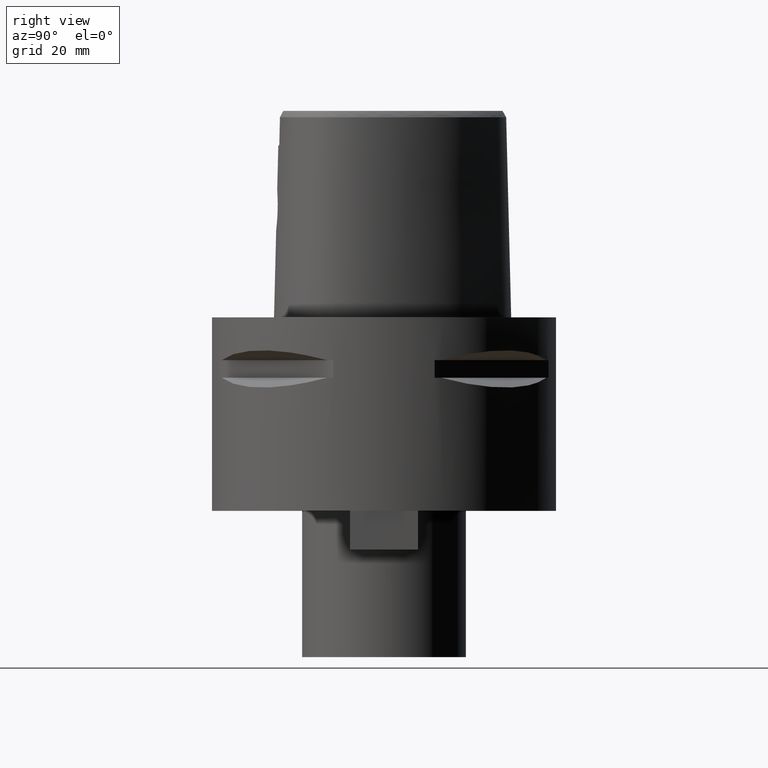
[diagram: clean part render]
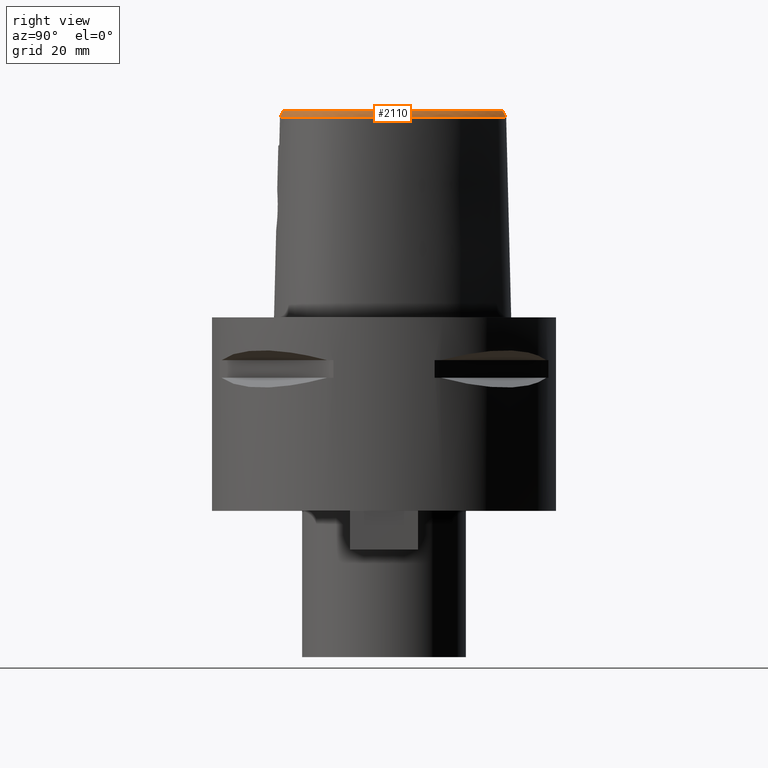
[diagram: same view with one face highlighted and labeled with its STEP entity id]
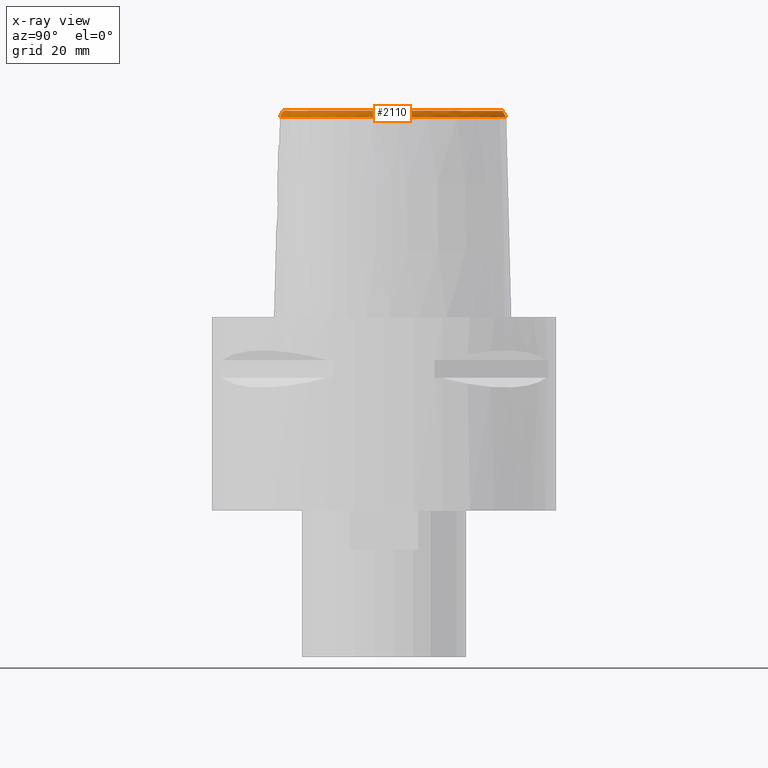
[diagram: x-ray of the same camera — body ghosted, the highlighted face saturated]
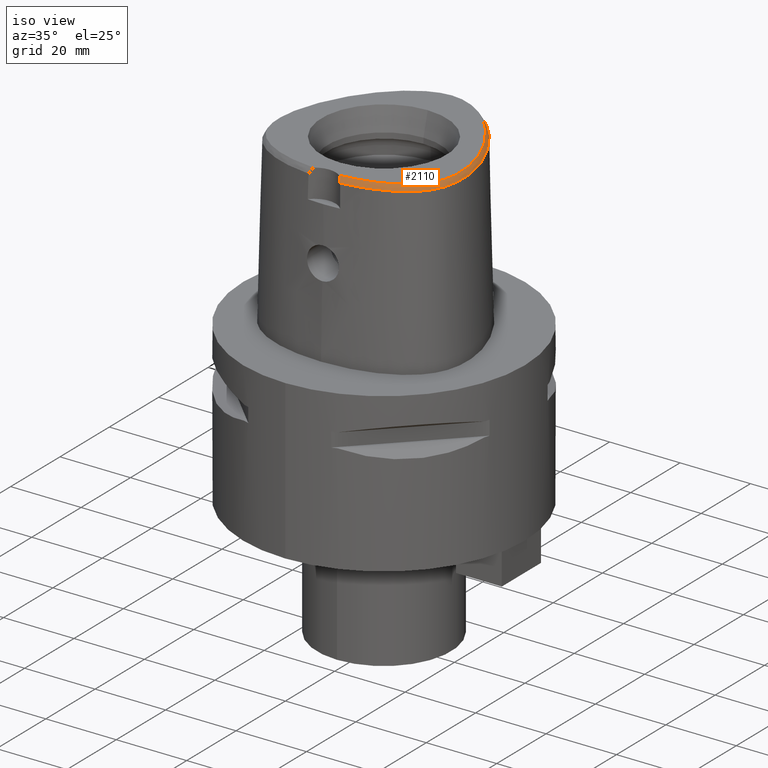
[diagram: same view with one face highlighted and labeled with its STEP entity id]
A machine part, right view. The second image highlights one B-rep face of the part: STEP entity #2110.
The next image is the same camera in x-ray: the body ghosted, the highlighted face saturated — about 0% of this face is hidden behind the body in this view.
A second angle (iso view) of the same face is appended — the face is thin or edge-on in the first view.
In plain terms, the highlighted face is a freeform B-spline surface patch.
Its self-contained STEP definition (entity closure, byte-faithful):
#68=CARTESIAN_POINT('',(-2.553408000952E-11,2.758331912251E1,4.8E1));
#73=CARTESIAN_POINT('',(-2.553408000952E-11,2.758331912251E1,4.8E1));
#74=CARTESIAN_POINT('',(4.115518140146E-1,2.758331912251E1,4.8E1));
#75=CARTESIAN_POINT('',(1.252812999194E0,2.754100023112E1,4.8E1));
#76=CARTESIAN_POINT('',(2.555780250504E0,2.734423292935E1,4.8E1));
#77=CARTESIAN_POINT('',(3.940059267149E0,2.699677996717E1,4.8E1));
#78=CARTESIAN_POINT('',(5.415686572734E0,2.647158326860E1,4.8E1));
#79=CARTESIAN_POINT('',(6.883863305719E0,2.579442850732E1,4.8E1));
#80=CARTESIAN_POINT('',(8.324577796249E0,2.498594123771E1,4.8E1));
#81=CARTESIAN_POINT('',(9.764245875749E0,2.403625037559E1,4.8E1));
#82=CARTESIAN_POINT('',(1.121731753841E1,2.293059990146E1,4.8E1));
#83=CARTESIAN_POINT('',(1.265943113808E1,2.168396392709E1,4.8E1));
#84=CARTESIAN_POINT('',(1.415694536513E1,2.022686533139E1,4.8E1));
#85=CARTESIAN_POINT('',(1.574616112135E1,1.848377188645E1,4.8E1));
#86=CARTESIAN_POINT('',(1.743755984716E1,1.638027285373E1,4.8E1));
#87=CARTESIAN_POINT('',(1.923019981160E1,1.382045343107E1,4.8E1));
#88=CARTESIAN_POINT('',(2.098778438516E1,1.087258208121E1,4.8E1));
#89=CARTESIAN_POINT('',(2.243920421104E1,7.967382873904E0,4.8E1));
#90=CARTESIAN_POINT('',(2.352934692303E1,5.354403731458E0,4.8E1));
#91=CARTESIAN_POINT('',(2.433311450360E1,3.027278039614E0,4.8E1));
#92=CARTESIAN_POINT('',(2.492202276637E1,9.199164728889E-1,4.8E1));
#93=CARTESIAN_POINT('',(2.534307751674E1,-1.028686995382E0,4.8E1));
#94=CARTESIAN_POINT('',(2.562347161733E1,-2.866060174255E0,4.8E1));
#95=CARTESIAN_POINT('',(2.577525295099E1,-4.619079513589E0,4.8E1));
#96=CARTESIAN_POINT('',(2.580329108130E1,-6.294417175424E0,4.8E1));
#97=CARTESIAN_POINT('',(2.570593627926E1,-7.928884903588E0,4.8E1));
#98=CARTESIAN_POINT('',(2.547489434935E1,-9.502196464108E0,4.8E1));
#99=CARTESIAN_POINT('',(2.512383179570E1,-1.093879418851E1,4.8E1));
#100=CARTESIAN_POINT('',(2.467649270377E1,-1.221933321410E1,4.8E1));
#101=CARTESIAN_POINT('',(2.414369035415E1,-1.337057452769E1,4.8E1));
#102=CARTESIAN_POINT('',(2.351448043638E1,-1.443505943095E1,4.8E1));
#103=CARTESIAN_POINT('',(2.275400104308E1,-1.547009179885E1,4.8E1));
#104=CARTESIAN_POINT('',(2.183425649090E1,-1.649645265161E1,4.8E1));
#105=CARTESIAN_POINT('',(2.072167570066E1,-1.751991780940E1,4.8E1));
#106=CARTESIAN_POINT('',(1.944737353297E1,-1.848994922550E1,4.8E1));
#107=CARTESIAN_POINT('',(1.806555532782E1,-1.936970788628E1,4.8E1));
#108=CARTESIAN_POINT('',(1.657642354048E1,-2.016850319375E1,4.8E1));
#109=CARTESIAN_POINT('',(1.495846170874E1,-2.089837424681E1,4.8E1));
#110=CARTESIAN_POINT('',(1.319892395459E1,-2.156005518364E1,4.8E1));
#111=CARTESIAN_POINT('',(1.126259576379E1,-2.215646943111E1,4.8E1));
#112=CARTESIAN_POINT('',(9.099590316226E0,-2.268429491829E1,4.8E1));
#113=CARTESIAN_POINT('',(6.613186020737E0,-2.313478958409E1,4.8E1));
#114=CARTESIAN_POINT('',(4.682467291065E0,-2.335837162264E1,4.8E1));
#115=CARTESIAN_POINT('',(3.652533226355E0,-2.343985283522E1,4.8E1));
#136=CARTESIAN_POINT('',(4.472216720977E0,-2.420009030094E1,4.652069014669E1));
#137=CARTESIAN_POINT('',(4.386010262912E0,-2.410370463421E1,4.670661889088E1));
#138=CARTESIAN_POINT('',(4.209588407523E0,-2.391900971699E1,4.706412822609E1));
#139=CARTESIAN_POINT('',(3.935828120916E0,-2.366630057643E1,4.755622250874E1));
#140=CARTESIAN_POINT('',(3.747630083148E0,-2.351282209796E1,4.785677019224E1));
#141=CARTESIAN_POINT('',(3.652533226355E0,-2.343985283522E1,4.8E1));
#146=CARTESIAN_POINT('',(-1.192082389871E-11,2.841206021535E1,
4.652071719451E1));
#147=CARTESIAN_POINT('',(4.307864532616E-1,2.841206021535E1,4.652071719450E1));
#148=CARTESIAN_POINT('',(1.290243686184E0,2.837019130399E1,4.652066945681E1));
#149=CARTESIAN_POINT('',(2.651382969300E0,2.817075131217E1,4.652072173657E1));
#150=CARTESIAN_POINT('',(4.074336725514E0,2.782158805987E1,4.652071662403E1));
#151=CARTESIAN_POINT('',(5.595396641510E0,2.729412342731E1,4.652071792632E1));
#152=CARTESIAN_POINT('',(7.148401170429E0,2.659115128114E1,4.652071612578E1));
#153=CARTESIAN_POINT('',(8.648901433880E0,2.575940722620E1,4.652071983167E1));
#154=CARTESIAN_POINT('',(1.014085376795E1,2.478567019196E1,4.652071087505E1));
#155=CARTESIAN_POINT('',(1.163634389221E1,2.365837475426E1,4.652072134214E1));
#156=CARTESIAN_POINT('',(1.312206139416E1,2.238454939745E1,4.652070894396E1));
#157=CARTESIAN_POINT('',(1.464954312101E1,2.090981865911E1,4.652072249137E1));
#158=CARTESIAN_POINT('',(1.627049443460E1,1.914527469749E1,4.652071424681E1));
#159=CARTESIAN_POINT('',(1.796715023455E1,1.705317788108E1,4.652071595745E1));
#160=CARTESIAN_POINT('',(1.976675591674E1,1.451407693380E1,4.652071286765E1));
#161=CARTESIAN_POINT('',(2.155481495532E1,1.156129316215E1,4.652072225927E1));
#162=CARTESIAN_POINT('',(2.306234486812E1,8.597486850136E0,4.652070049337E1));
#163=CARTESIAN_POINT('',(2.420803968411E1,5.900893542150E0,4.652073260544E1));
#164=CARTESIAN_POINT('',(2.505075205546E1,3.508806534219E0,4.652070587113E1));
#165=CARTESIAN_POINT('',(2.567322114582E1,1.334239622551E0,4.652072040351E1));
#166=CARTESIAN_POINT('',(2.612208390211E1,-6.831609166437E-1,4.652071505202E1));
#167=CARTESIAN_POINT('',(2.642336422375E1,-2.578372535586E0,4.652071650711E1));
#168=CARTESIAN_POINT('',(2.659276820406E1,-4.384275880597E0,4.652072456076E1));
#169=CARTESIAN_POINT('',(2.663583653238E1,-6.135581087396E0,4.652071710227E1));
#170=CARTESIAN_POINT('',(2.654751142963E1,-7.846272567363E0,4.652072628708E1));
#171=CARTESIAN_POINT('',(2.632143472515E1,-9.488605039501E0,4.652071421244E1));
#172=CARTESIAN_POINT('',(2.597174481755E1,-1.099177779397E1,4.652071992217E1));
#173=CARTESIAN_POINT('',(2.551858327167E1,-1.234588235508E1,4.652071412068E1));
#174=CARTESIAN_POINT('',(2.497559107320E1,-1.356602454549E1,4.652075669904E1));
#175=CARTESIAN_POINT('',(2.433850461759E1,-1.468791980804E1,4.652070695486E1));
#176=CARTESIAN_POINT('',(2.357618928729E1,-1.576858274354E1,4.652071763775E1));
#177=CARTESIAN_POINT('',(2.265471437373E1,-1.684003196701E1,4.652072240142E1));
#178=CARTESIAN_POINT('',(2.155775256317E1,-1.789549174916E1,4.652072060407E1));
#179=CARTESIAN_POINT('',(2.026560008652E1,-1.892662209559E1,4.652071544456E1));
#180=CARTESIAN_POINT('',(1.884589376524E1,-1.987031783692E1,4.652072190080E1));
#181=CARTESIAN_POINT('',(1.732978088980E1,-2.071804177538E1,4.652071539137E1));
#182=CARTESIAN_POINT('',(1.569410989927E1,-2.148812130568E1,4.652072076625E1));
#183=CARTESIAN_POINT('',(1.392111693752E1,-2.218590314739E1,4.652071740261E1));
#184=CARTESIAN_POINT('',(1.198420861573E1,-2.281361203436E1,4.652071708225E1));
#185=CARTESIAN_POINT('',(9.835533378743E0,-2.337079420995E1,4.652070590076E1));
#186=CARTESIAN_POINT('',(7.390616142475E0,-2.385180856250E1,4.652075205461E1));
#187=CARTESIAN_POINT('',(5.484368735454E0,-2.410320139643E1,4.652065282523E1));
#188=CARTESIAN_POINT('',(4.472216720977E0,-2.420009030094E1,4.652069014669E1));
#249=DIRECTION('',(-8.028535592613E-12,-4.887572309465E-1,8.724198353989E-1));
#250=VECTOR('',#249,1.695608863382E0);
#251=CARTESIAN_POINT('',(-1.192082389871E-11,2.841206021535E1,
4.652071719451E1));
#252=LINE('',#251,#250);
#1599=CARTESIAN_POINT('',(3.652533226356E0,-2.343985283522E1,4.8E1));
#1601=VERTEX_POINT('',#1599);
#1603=VERTEX_POINT('',#68);
#1608=VERTEX_POINT('',#136);
#1613=CARTESIAN_POINT('',(-1.192082389871E-11,2.841206021535E1,
4.652071719451E1));
#1614=VERTEX_POINT('',#1613);
#1825=CARTESIAN_POINT('',(2.878253540096E0,-2.339382758005E1,4.817929480422E1));
#1826=CARTESIAN_POINT('',(2.899541087945E0,-2.373638351576E1,4.756666157539E1));
#1827=CARTESIAN_POINT('',(2.920828635793E0,-2.407893945146E1,4.695402834656E1));
#1828=CARTESIAN_POINT('',(2.942116183642E0,-2.442149538716E1,4.634139511773E1));
#1829=CARTESIAN_POINT('',(3.134701160635E0,-2.337789003708E1,4.817929479239E1));
#1830=CARTESIAN_POINT('',(3.157911232768E0,-2.372032651274E1,4.756666160396E1));
#1831=CARTESIAN_POINT('',(3.181121304901E0,-2.406276298840E1,4.695402841553E1));
#1832=CARTESIAN_POINT('',(3.204331377034E0,-2.440519946406E1,4.634139522709E1));
#1833=CARTESIAN_POINT('',(3.432876479455E0,-2.335683200929E1,4.817929478187E1));
#1834=CARTESIAN_POINT('',(3.458333855538E0,-2.369910989921E1,4.756666162940E1));
#1835=CARTESIAN_POINT('',(3.483791231622E0,-2.404138778913E1,4.695402847692E1));
#1836=CARTESIAN_POINT('',(3.509248607705E0,-2.438366567905E1,4.634139532444E1));
#1837=CARTESIAN_POINT('',(4.349376585280E0,-2.328301958475E1,4.817929476723E1));
#1838=CARTESIAN_POINT('',(4.381791787318E0,-2.362473724221E1,4.756666166480E1));
#1839=CARTESIAN_POINT('',(4.414206989355E0,-2.396645489967E1,4.695402856238E1));
#1840=CARTESIAN_POINT('',(4.446622191392E0,-2.430817255713E1,4.634139545995E1));
#1841=CARTESIAN_POINT('',(5.615772260283E0,-2.315251303356E1,4.817929480572E1));
#1842=CARTESIAN_POINT('',(5.657963277834E0,-2.349322710756E1,4.756666157176E1));
#1843=CARTESIAN_POINT('',(5.700154295385E0,-2.383394118156E1,4.695402833779E1));
#1844=CARTESIAN_POINT('',(5.742345312936E0,-2.417465525557E1,4.634139510382E1));
#1845=CARTESIAN_POINT('',(7.379661044971E0,-2.289572732550E1,4.817929496559E1));
#1846=CARTESIAN_POINT('',(7.436112856851E0,-2.323437333246E1,4.756666118538E1));
#1847=CARTESIAN_POINT('',(7.492564668731E0,-2.357301933942E1,4.695402740518E1));
#1848=CARTESIAN_POINT('',(7.549016480610E0,-2.391166534638E1,4.634139362497E1));
#1849=CARTESIAN_POINT('',(9.058941961323E0,-2.257816085945E1,4.817929495824E1));
#1850=CARTESIAN_POINT('',(9.129756878698E0,-2.291410018104E1,4.756666120316E1));
#1851=CARTESIAN_POINT('',(9.200571796074E0,-2.325003950264E1,4.695402744809E1));
#1852=CARTESIAN_POINT('',(9.271386713450E0,-2.358597882424E1,4.634139369301E1));
#1853=CARTESIAN_POINT('',(1.064397126411E1,-2.220726637513E1,4.817929495872E1));
#1854=CARTESIAN_POINT('',(1.072923522968E1,-2.253983597454E1,4.756666120198E1));
#1855=CARTESIAN_POINT('',(1.081449919524E1,-2.287240557395E1,4.695402744524E1));
#1856=CARTESIAN_POINT('',(1.089976316081E1,-2.320497517337E1,4.634139368850E1));
#1857=CARTESIAN_POINT('',(1.212762234551E1,-2.179097439714E1,4.817929491828E1));
#1858=CARTESIAN_POINT('',(1.222744313648E1,-2.211947259992E1,4.756666129972E1));
#1859=CARTESIAN_POINT('',(1.232726392744E1,-2.244797080270E1,4.695402768116E1));
#1860=CARTESIAN_POINT('',(1.242708471841E1,-2.277646900547E1,4.634139406260E1));
#1861=CARTESIAN_POINT('',(1.350739721848E1,-2.133674004007E1,4.817929492226E1));
#1862=CARTESIAN_POINT('',(1.362184085261E1,-2.166043900379E1,4.756666129011E1));
#1863=CARTESIAN_POINT('',(1.373628448673E1,-2.198413796751E1,4.695402765795E1));
#1864=CARTESIAN_POINT('',(1.385072812086E1,-2.230783693123E1,4.634139402580E1));
#1865=CARTESIAN_POINT('',(1.478196260078E1,-2.085206582050E1,4.817929495880E1));
#1866=CARTESIAN_POINT('',(1.491110622325E1,-2.117019120142E1,4.756666120178E1));
#1867=CARTESIAN_POINT('',(1.504024984572E1,-2.148831658233E1,4.695402744476E1));
#1868=CARTESIAN_POINT('',(1.516939346819E1,-2.180644196324E1,4.634139368775E1));
#1869=CARTESIAN_POINT('',(1.595468300171E1,-2.034282558511E1,4.817929491098E1));
#1870=CARTESIAN_POINT('',(1.609854415560E1,-2.065457739340E1,4.756666131736E1));
#1871=CARTESIAN_POINT('',(1.624240530950E1,-2.096632920169E1,4.695402772374E1));
#1872=CARTESIAN_POINT('',(1.638626646339E1,-2.127808100998E1,4.634139413012E1));
#1873=CARTESIAN_POINT('',(1.702908869225E1,-1.981465867133E1,4.817929495777E1));
#1874=CARTESIAN_POINT('',(1.718765382655E1,-2.011920145039E1,4.756666120428E1));
#1875=CARTESIAN_POINT('',(1.734621896085E1,-2.042374422945E1,4.695402745078E1));
#1876=CARTESIAN_POINT('',(1.750478409516E1,-2.072828700851E1,4.634139369729E1));
#1877=CARTESIAN_POINT('',(1.800952033529E1,-1.927247388401E1,4.817929492810E1));
#1878=CARTESIAN_POINT('',(1.818274920377E1,-1.956892769260E1,4.756666127596E1));
#1879=CARTESIAN_POINT('',(1.835597807225E1,-1.986538150119E1,4.695402762382E1));
#1880=CARTESIAN_POINT('',(1.852920694073E1,-2.016183530979E1,4.634139397168E1));
#1881=CARTESIAN_POINT('',(1.890284493657E1,-1.871935550072E1,4.817929486162E1));
#1882=CARTESIAN_POINT('',(1.909059848213E1,-1.900683667672E1,4.756666143666E1));
#1883=CARTESIAN_POINT('',(1.927835202769E1,-1.929431785271E1,4.695402801170E1));
#1884=CARTESIAN_POINT('',(1.946610557325E1,-1.958179902870E1,4.634139458674E1));
#1885=CARTESIAN_POINT('',(1.971431145421E1,-1.815866839335E1,4.817929491513E1));
#1886=CARTESIAN_POINT('',(1.991640645136E1,-1.843626271310E1,4.756666130731E1));
#1887=CARTESIAN_POINT('',(2.011850144851E1,-1.871385703285E1,4.695402769949E1));
#1888=CARTESIAN_POINT('',(2.032059644567E1,-1.899145135260E1,4.634139409167E1));
#1889=CARTESIAN_POINT('',(2.044926806529E1,-1.759312083305E1,4.817929497689E1));
#1890=CARTESIAN_POINT('',(2.066545930849E1,-1.785989099503E1,4.756666115805E1));
#1891=CARTESIAN_POINT('',(2.088165055169E1,-1.812666115702E1,4.695402733922E1));
#1892=CARTESIAN_POINT('',(2.109784179489E1,-1.839343131900E1,4.634139352039E1));
#1893=CARTESIAN_POINT('',(2.111416068400E1,-1.702387299623E1,4.817929497628E1));
#1894=CARTESIAN_POINT('',(2.134410444258E1,-1.727889174717E1,4.756666115952E1));
#1895=CARTESIAN_POINT('',(2.157404820116E1,-1.753391049812E1,4.695402734277E1));
#1896=CARTESIAN_POINT('',(2.180399195974E1,-1.778892924906E1,4.634139352601E1));
#1897=CARTESIAN_POINT('',(2.171476727209E1,-1.645170451789E1,4.817929496646E1));
#1898=CARTESIAN_POINT('',(2.195804290890E1,-1.669404595385E1,4.756666118326E1));
#1899=CARTESIAN_POINT('',(2.220131854571E1,-1.693638738982E1,4.695402740005E1));
#1900=CARTESIAN_POINT('',(2.244459418253E1,-1.717872882578E1,4.634139361685E1));
#1901=CARTESIAN_POINT('',(2.225605457993E1,-1.587726213706E1,4.817929494814E1));
#1902=CARTESIAN_POINT('',(2.251215688483E1,-1.610601398565E1,4.756666122756E1));
#1903=CARTESIAN_POINT('',(2.276825918973E1,-1.633476583425E1,4.695402750698E1));
#1904=CARTESIAN_POINT('',(2.302436149463E1,-1.656351768285E1,4.634139378640E1));
#1905=CARTESIAN_POINT('',(2.274319250625E1,-1.530002802082E1,4.817929490232E1));
#1906=CARTESIAN_POINT('',(2.301152251924E1,-1.551431258769E1,4.756666133830E1));
#1907=CARTESIAN_POINT('',(2.327985253223E1,-1.572859715455E1,4.695402777429E1));
#1908=CARTESIAN_POINT('',(2.354818254523E1,-1.594288172142E1,4.634139421027E1));
#1909=CARTESIAN_POINT('',(2.318034740069E1,-1.471958816329E1,4.817929497473E1));
#1910=CARTESIAN_POINT('',(2.346021355486E1,-1.491857558932E1,4.756666116329E1));
#1911=CARTESIAN_POINT('',(2.374007970903E1,-1.511756301535E1,4.695402735186E1));
#1912=CARTESIAN_POINT('',(2.401994586319E1,-1.531655044138E1,4.634139354042E1));
#1913=CARTESIAN_POINT('',(2.357035555939E1,-1.413644273289E1,4.817929498600E1));
#1914=CARTESIAN_POINT('',(2.386099700554E1,-1.431934392740E1,4.756666113606E1));
#1915=CARTESIAN_POINT('',(2.415163845169E1,-1.450224512191E1,4.695402728611E1));
#1916=CARTESIAN_POINT('',(2.444227989784E1,-1.468514631642E1,4.634139343617E1));
#1917=CARTESIAN_POINT('',(2.391909594920E1,-1.354532619959E1,4.817929493660E1));
#1918=CARTESIAN_POINT('',(2.421973155988E1,-1.371129016901E1,4.756666125544E1));
#1919=CARTESIAN_POINT('',(2.452036717056E1,-1.387725413843E1,4.695402757428E1));
#1920=CARTESIAN_POINT('',(2.482100278125E1,-1.404321810784E1,4.634139389311E1));
#1921=CARTESIAN_POINT('',(2.423736620036E1,-1.292859412102E1,4.817929501333E1));
#1922=CARTESIAN_POINT('',(2.454690117755E1,-1.307728899393E1,4.756666107001E1));
#1923=CARTESIAN_POINT('',(2.485643615474E1,-1.322598386684E1,4.695402712668E1));
#1924=CARTESIAN_POINT('',(2.516597113192E1,-1.337467873974E1,4.634139318336E1));
#1925=CARTESIAN_POINT('',(2.453031712978E1,-1.227310731564E1,4.817929490505E1));
#1926=CARTESIAN_POINT('',(2.484768929831E1,-1.240423587345E1,4.756666133168E1));
#1927=CARTESIAN_POINT('',(2.516506146685E1,-1.253536443127E1,4.695402775831E1));
#1928=CARTESIAN_POINT('',(2.548243363539E1,-1.266649298908E1,4.634139418493E1));
#1929=CARTESIAN_POINT('',(2.479609831880E1,-1.157673683849E1,4.817929493203E1));
#1930=CARTESIAN_POINT('',(2.512023892828E1,-1.169009344553E1,4.756666126647E1));
#1931=CARTESIAN_POINT('',(2.544437953776E1,-1.180345005256E1,4.695402760091E1));
#1932=CARTESIAN_POINT('',(2.576852014724E1,-1.191680665960E1,4.634139393535E1));
#1933=CARTESIAN_POINT('',(2.503296071687E1,-1.083633477543E1,4.817929496331E1));
#1934=CARTESIAN_POINT('',(2.536280943183E1,-1.093179907738E1,4.756666119088E1));
#1935=CARTESIAN_POINT('',(2.569265814679E1,-1.102726337934E1,4.695402741846E1));
#1936=CARTESIAN_POINT('',(2.602250686175E1,-1.112272768129E1,4.634139364603E1));
#1937=CARTESIAN_POINT('',(2.523897884263E1,-1.004729509958E1,4.817929497339E1));
#1938=CARTESIAN_POINT('',(2.557348353211E1,-1.012486136453E1,4.756666116652E1));
#1939=CARTESIAN_POINT('',(2.590798822158E1,-1.020242762948E1,4.695402735965E1));
#1940=CARTESIAN_POINT('',(2.624249291105E1,-1.027999389443E1,4.634139355278E1));
#1941=CARTESIAN_POINT('',(2.541141809162E1,-9.205306271202E0,4.817929497958E1));
#1942=CARTESIAN_POINT('',(2.574955639957E1,-9.265045194389E0,4.756666115158E1));
#1943=CARTESIAN_POINT('',(2.608769470753E1,-9.324784117577E0,4.695402732358E1));
#1944=CARTESIAN_POINT('',(2.642583301549E1,-9.384523040764E0,4.634139349558E1));
#1945=CARTESIAN_POINT('',(2.554685183610E1,-8.306210711050E0,4.817929494479E1));
#1946=CARTESIAN_POINT('',(2.588763583216E1,-8.348265209965E0,4.756666123566E1));
#1947=CARTESIAN_POINT('',(2.622841982821E1,-8.390319708880E0,4.695402752652E1));
#1948=CARTESIAN_POINT('',(2.656920382426E1,-8.432374207795E0,4.634139381739E1));
#1949=CARTESIAN_POINT('',(2.564131904922E1,-7.344931909766E0,4.817929486724E1));
#1950=CARTESIAN_POINT('',(2.598379959057E1,-7.369533941265E0,4.756666142308E1));
#1951=CARTESIAN_POINT('',(2.632628013191E1,-7.394135972765E0,4.695402797892E1));
#1952=CARTESIAN_POINT('',(2.666876067325E1,-7.418738004264E0,4.634139453476E1));
#1953=CARTESIAN_POINT('',(2.569005747081E1,-6.317179891181E0,4.817929489436E1));
#1954=CARTESIAN_POINT('',(2.603333447341E1,-6.324612137581E0,4.756666135754E1));
#1955=CARTESIAN_POINT('',(2.637661147601E1,-6.332044383982E0,4.695402782072E1));
#1956=CARTESIAN_POINT('',(2.671988847862E1,-6.339476630382E0,4.634139428390E1));
#1957=CARTESIAN_POINT('',(2.568766231856E1,-5.220892987372E0,4.817929496963E1));
#1958=CARTESIAN_POINT('',(2.603088483115E1,-5.211470430216E0,4.756666117562E1));
#1959=CARTESIAN_POINT('',(2.637410734374E1,-5.202047873060E0,4.695402738162E1));
#1960=CARTESIAN_POINT('',(2.671732985632E1,-5.192625315903E0,4.634139358761E1));
#1961=CARTESIAN_POINT('',(2.562826136773E1,-4.051724218160E0,4.817929491800E1));
#1962=CARTESIAN_POINT('',(2.597062935559E1,-4.025827489707E0,4.756666130040E1));
#1963=CARTESIAN_POINT('',(2.631299734344E1,-3.999930761254E0,4.695402768280E1));
#1964=CARTESIAN_POINT('',(2.665536533129E1,-3.974034032801E0,4.634139406520E1));
#1965=CARTESIAN_POINT('',(2.550543234602E1,-2.806473891432E0,4.817929494107E1));
#1966=CARTESIAN_POINT('',(2.584619908252E1,-2.764509410520E0,4.756666124463E1));
#1967=CARTESIAN_POINT('',(2.618696581902E1,-2.722544929608E0,4.695402754819E1));
#1968=CARTESIAN_POINT('',(2.652773255552E1,-2.680580448696E0,4.634139385175E1));
#1969=CARTESIAN_POINT('',(2.531265808630E1,-1.485635515978E0,4.817929494522E1));
#1970=CARTESIAN_POINT('',(2.565112286068E1,-1.428006345769E0,4.756666123462E1));
#1971=CARTESIAN_POINT('',(2.598958763506E1,-1.370377175560E0,4.695402752403E1));
#1972=CARTESIAN_POINT('',(2.632805240944E1,-1.312748005351E0,4.634139381343E1));
#1973=CARTESIAN_POINT('',(2.504310249285E1,-8.847488880382E-2,
4.817929489919E1));
#1974=CARTESIAN_POINT('',(2.537861785221E1,-1.563507503585E-2,
4.756666134585E1));
#1975=CARTESIAN_POINT('',(2.571413321157E1,5.720473873213E-2,4.695402779252E1));
#1976=CARTESIAN_POINT('',(2.604964857093E1,1.300445525001E-1,4.634139423919E1));
#1977=CARTESIAN_POINT('',(2.469065415675E1,1.381405070393E0,4.817929495592E1));
#1978=CARTESIAN_POINT('',(2.502261242548E1,1.469024035523E0,4.756666120874E1));
#1979=CARTESIAN_POINT('',(2.535457069422E1,1.556643000653E0,4.695402746155E1));
#1980=CARTESIAN_POINT('',(2.568652896296E1,1.644261965784E0,4.634139371437E1));
#1981=CARTESIAN_POINT('',(2.424985249583E1,2.918488207322E0,4.817929496030E1));
#1982=CARTESIAN_POINT('',(2.457768487074E1,3.020452313812E0,4.756666119818E1));
#1983=CARTESIAN_POINT('',(2.490551724564E1,3.122416420303E0,4.695402743607E1));
#1984=CARTESIAN_POINT('',(2.523334962054E1,3.224380526794E0,4.634139367396E1));
#1985=CARTESIAN_POINT('',(2.371658389402E1,4.514482118040E0,4.817929499236E1));
#1986=CARTESIAN_POINT('',(2.403975417859E1,4.630368016656E0,4.756666112068E1));
#1987=CARTESIAN_POINT('',(2.436292446316E1,4.746253915271E0,4.695402724900E1));
#1988=CARTESIAN_POINT('',(2.468609474773E1,4.862139813886E0,4.634139337732E1));
#1989=CARTESIAN_POINT('',(2.308882046825E1,6.157284319541E0,4.817929483520E1));
#1990=CARTESIAN_POINT('',(2.340681404508E1,6.286693990514E0,4.756666150050E1));
#1991=CARTESIAN_POINT('',(2.372480762190E1,6.416103661487E0,4.695402816580E1));
#1992=CARTESIAN_POINT('',(2.404280119872E1,6.545513332459E0,4.634139483110E1));
#1993=CARTESIAN_POINT('',(2.236519318149E1,7.835874689261E0,4.817929469180E1));
#1994=CARTESIAN_POINT('',(2.267751771936E1,7.978417855473E0,4.756666184711E1));
#1995=CARTESIAN_POINT('',(2.298984225722E1,8.120961021685E0,4.695402900242E1));
#1996=CARTESIAN_POINT('',(2.330216679509E1,8.263504187897E0,4.634139615773E1));
#1997=CARTESIAN_POINT('',(2.155230236590E1,9.524650853469E0,4.817929474288E1));
#1998=CARTESIAN_POINT('',(2.185849049215E1,9.679932616224E0,4.756666172365E1));
#1999=CARTESIAN_POINT('',(2.216467861839E1,9.835214378979E0,4.695402870443E1));
#2000=CARTESIAN_POINT('',(2.247086674463E1,9.990496141734E0,4.634139568521E1));
#2001=CARTESIAN_POINT('',(2.066073723828E1,1.119745779519E1,4.817929494824E1));
#2002=CARTESIAN_POINT('',(2.096034588437E1,1.136507978031E1,4.756666122732E1));
#2003=CARTESIAN_POINT('',(2.125995453046E1,1.153270176543E1,4.695402750639E1));
#2004=CARTESIAN_POINT('',(2.155956317655E1,1.170032375055E1,4.634139378547E1));
#2005=CARTESIAN_POINT('',(1.969904513740E1,1.283738634146E1,4.817929495512E1));
#2006=CARTESIAN_POINT('',(1.999160719156E1,1.301702536940E1,4.756666121068E1));
#2007=CARTESIAN_POINT('',(2.028416924572E1,1.319666439734E1,4.695402746623E1));
#2008=CARTESIAN_POINT('',(2.057673129988E1,1.337630342528E1,4.634139372179E1));
#2009=CARTESIAN_POINT('',(1.867711690119E1,1.442763107958E1,4.817929487127E1));
#2010=CARTESIAN_POINT('',(1.896209514279E1,1.461907703794E1,4.756666141334E1));
#2011=CARTESIAN_POINT('',(1.924707338438E1,1.481052299631E1,4.695402795541E1));
#2012=CARTESIAN_POINT('',(1.953205162597E1,1.500196895467E1,4.634139449747E1));
#2013=CARTESIAN_POINT('',(1.760751343995E1,1.595015400579E1,4.817929490602E1));
#2014=CARTESIAN_POINT('',(1.788433563830E1,1.615321830671E1,4.756666132934E1));
#2015=CARTESIAN_POINT('',(1.816115783666E1,1.635628260763E1,4.695402775266E1));
#2016=CARTESIAN_POINT('',(1.843798003501E1,1.655934690855E1,4.634139417599E1));
#2017=CARTESIAN_POINT('',(1.650928870760E1,1.738245694297E1,4.817929501593E1));
#2018=CARTESIAN_POINT('',(1.677738252509E1,1.759691700562E1,4.756666106372E1));
#2019=CARTESIAN_POINT('',(1.704547634258E1,1.781137706826E1,4.695402711150E1));
#2020=CARTESIAN_POINT('',(1.731357016008E1,1.802583713090E1,4.634139315929E1));
#2021=CARTESIAN_POINT('',(1.539738556666E1,1.871245139876E1,4.817929486317E1));
#2022=CARTESIAN_POINT('',(1.565614740245E1,1.893808747701E1,4.756666143293E1));
#2023=CARTESIAN_POINT('',(1.591490923823E1,1.916372355526E1,4.695402800269E1));
#2024=CARTESIAN_POINT('',(1.617367107401E1,1.938935963352E1,4.634139457245E1));
#2025=CARTESIAN_POINT('',(1.428150778430E1,1.993681609463E1,4.817929457013E1));
#2026=CARTESIAN_POINT('',(1.453033921841E1,2.017336286372E1,4.756666214115E1));
#2027=CARTESIAN_POINT('',(1.477917065252E1,2.040990963282E1,4.695402971217E1));
#2028=CARTESIAN_POINT('',(1.502800208663E1,2.064645640192E1,4.634139728319E1));
#2029=CARTESIAN_POINT('',(1.317294870607E1,2.105183781547E1,4.817929451407E1));
#2030=CARTESIAN_POINT('',(1.341120675788E1,2.129903674975E1,4.756666227664E1));
#2031=CARTESIAN_POINT('',(1.364946480969E1,2.154623568403E1,4.695403003921E1));
#2032=CARTESIAN_POINT('',(1.388772286150E1,2.179343461831E1,4.634139780178E1));
#2033=CARTESIAN_POINT('',(1.208167783410E1,2.205649309279E1,4.817929470255E1));
#2034=CARTESIAN_POINT('',(1.230869469954E1,2.231405973148E1,4.756666182110E1));
#2035=CARTESIAN_POINT('',(1.253571156498E1,2.257162637018E1,4.695402893966E1));
#2036=CARTESIAN_POINT('',(1.276272843042E1,2.282919300888E1,4.634139605821E1));
#2037=CARTESIAN_POINT('',(1.101624109975E1,2.295219304907E1,4.817929497923E1));
#2038=CARTESIAN_POINT('',(1.123132276709E1,2.321981327460E1,4.756666115240E1));
#2039=CARTESIAN_POINT('',(1.144640443442E1,2.348743350013E1,4.695402732557E1));
#2040=CARTESIAN_POINT('',(1.166148610175E1,2.375505372567E1,4.634139349874E1));
#2041=CARTESIAN_POINT('',(9.979655608767E0,2.374527679968E1,4.817929497939E1));
#2042=CARTESIAN_POINT('',(1.018208551843E1,2.402259659857E1,4.756666115204E1));
#2043=CARTESIAN_POINT('',(1.038451542810E1,2.429991639746E1,4.695402732468E1));
#2044=CARTESIAN_POINT('',(1.058694533777E1,2.457723619635E1,4.634139349733E1));
#2045=CARTESIAN_POINT('',(8.973732520359E0,2.444262298675E1,4.817929495461E1));
#2046=CARTESIAN_POINT('',(9.162808555798E0,2.472922040129E1,4.756666121192E1));
#2047=CARTESIAN_POINT('',(9.351884591237E0,2.501581781583E1,4.695402746922E1));
#2048=CARTESIAN_POINT('',(9.540960626676E0,2.530241523036E1,4.634139372653E1));
#2049=CARTESIAN_POINT('',(8.002255158888E0,2.504934267310E1,4.817929494894E1));
#2050=CARTESIAN_POINT('',(8.177242259661E0,2.534475980665E1,4.756666122560E1));
#2051=CARTESIAN_POINT('',(8.352229360434E0,2.564017694021E1,4.695402750225E1));
#2052=CARTESIAN_POINT('',(8.527216461208E0,2.593559407377E1,4.634139377891E1));
#2053=CARTESIAN_POINT('',(7.065230234663E0,2.557268375463E1,4.817929488264E1));
#2054=CARTESIAN_POINT('',(7.225418778209E0,2.587638619263E1,4.756666138586E1));
#2055=CARTESIAN_POINT('',(7.385607321756E0,2.618008863063E1,4.695402788908E1));
#2056=CARTESIAN_POINT('',(7.545795865302E0,2.648379106863E1,4.634139439230E1));
#2057=CARTESIAN_POINT('',(6.162461086783E0,2.601934298948E1,4.817929491141E1));
#2058=CARTESIAN_POINT('',(6.307147887575E0,2.633073562280E1,4.756666131631E1));
#2059=CARTESIAN_POINT('',(6.451834688367E0,2.664212825611E1,4.695402772121E1));
#2060=CARTESIAN_POINT('',(6.596521489159E0,2.695352088942E1,4.634139412610E1));
#2061=CARTESIAN_POINT('',(5.294378534299E0,2.639514168252E1,4.817929496493E1));
#2062=CARTESIAN_POINT('',(5.422866588708E0,2.671356669151E1,4.756666118696E1));
#2063=CARTESIAN_POINT('',(5.551354643117E0,2.703199170050E1,4.695402740900E1));
#2064=CARTESIAN_POINT('',(5.679842697526E0,2.735041670949E1,4.634139363103E1));
#2065=CARTESIAN_POINT('',(4.458624892379E0,2.670655053248E1,4.817929491402E1));
#2066=CARTESIAN_POINT('',(4.570267393002E0,2.703127100723E1,4.756666131001E1));
#2067=CARTESIAN_POINT('',(4.681909893626E0,2.735599148197E1,4.695402770600E1));
#2068=CARTESIAN_POINT('',(4.793552394250E0,2.768071195672E1,4.634139410199E1));
#2069=CARTESIAN_POINT('',(3.652731663768E0,2.695927323951E1,4.817929488597E1));
#2070=CARTESIAN_POINT('',(3.746923169225E0,2.728948393718E1,4.756666137779E1));
#2071=CARTESIAN_POINT('',(3.841114674681E0,2.761969463486E1,4.695402786961E1));
#2072=CARTESIAN_POINT('',(3.935306180137E0,2.794990533253E1,4.634139436144E1));
#2073=CARTESIAN_POINT('',(2.875096040594E0,2.715801029696E1,4.817929492173E1));
#2074=CARTESIAN_POINT('',(2.951283516340E0,2.749283868851E1,4.756666129136E1));
#2075=CARTESIAN_POINT('',(3.027470992087E0,2.782766708006E1,4.695402766098E1));
#2076=CARTESIAN_POINT('',(3.103658467833E0,2.816249547162E1,4.634139403060E1));
#2077=CARTESIAN_POINT('',(2.123699412496E0,2.730696566944E1,4.817929501353E1));
#2078=CARTESIAN_POINT('',(2.181391923092E0,2.764547658778E1,4.756666106951E1));
#2079=CARTESIAN_POINT('',(2.239084433687E0,2.798398750612E1,4.695402712550E1));
#2080=CARTESIAN_POINT('',(2.296776944283E0,2.832249842446E1,4.634139318148E1));
#2081=CARTESIAN_POINT('',(1.396591290747E0,2.740985315915E1,4.817929504152E1));
#2082=CARTESIAN_POINT('',(1.435361911610E0,2.775105302264E1,4.756666100185E1));
#2083=CARTESIAN_POINT('',(1.474132532473E0,2.809225288614E1,4.695402696217E1));
#2084=CARTESIAN_POINT('',(1.512903153336E0,2.843345274964E1,4.634139292249E1));
#2085=CARTESIAN_POINT('',(6.880234753804E-1,2.746986143815E1,4.817929498809E1));
#2086=CARTESIAN_POINT('',(7.075694511935E-1,2.781270526344E1,4.756666113098E1));
#2087=CARTESIAN_POINT('',(7.271154270065E-1,2.815554908873E1,4.695402727387E1));
#2088=CARTESIAN_POINT('',(7.466614028195E-1,2.849839291403E1,4.634139341676E1));
#2089=CARTESIAN_POINT('',(-1.554961956106E-2,2.748987779925E1,
4.817929492453E1));
#2090=CARTESIAN_POINT('',(-1.607582850270E-2,2.783329542141E1,
4.756666128459E1));
#2091=CARTESIAN_POINT('',(-1.660203744433E-2,2.817671304358E1,
4.695402764465E1));
#2092=CARTESIAN_POINT('',(-1.712824638596E-2,2.852013066575E1,
4.634139400470E1));
#2093=CARTESIAN_POINT('',(-4.991749595336E-1,2.747532872935E1,
4.817929497073E1));
#2094=CARTESIAN_POINT('',(-5.131422253717E-1,2.781832928216E1,
4.756666117294E1));
#2095=CARTESIAN_POINT('',(-5.271094912098E-1,2.816132983497E1,
4.695402737515E1));
#2096=CARTESIAN_POINT('',(-5.410767570479E-1,2.850433038779E1,
4.634139357735E1));
#2097=CARTESIAN_POINT('',(-7.594993333710E-1,2.746054496828E1,
4.817929504621E1));
#2098=CARTESIAN_POINT('',(-7.803037028429E-1,2.780310585329E1,
4.756666099052E1));
#2099=CARTESIAN_POINT('',(-8.011080723149E-1,2.814566673831E1,
4.695402693483E1));
#2100=CARTESIAN_POINT('',(-8.219124417868E-1,2.848822762332E1,
4.634139287914E1));
#2101=B_SPLINE_SURFACE_WITH_KNOTS('',3,3,((#1825,#1826,#1827,#1828),(#1829,
#1830,#1831,#1832),(#1833,#1834,#1835,#1836),(#1837,#1838,#1839,#1840),(#1841,
#1842,#1843,#1844),(#1845,#1846,#1847,#1848),(#1849,#1850,#1851,#1852),(#1853,
#1854,#1855,#1856),(#1857,#1858,#1859,#1860),(#1861,#1862,#1863,#1864),(#1865,
#1866,#1867,#1868),(#1869,#1870,#1871,#1872),(#1873,#1874,#1875,#1876),(#1877,
#1878,#1879,#1880),(#1881,#1882,#1883,#1884),(#1885,#1886,#1887,#1888),(#1889,
#1890,#1891,#1892),(#1893,#1894,#1895,#1896),(#1897,#1898,#1899,#1900),(#1901,
#1902,#1903,#1904),(#1905,#1906,#1907,#1908),(#1909,#1910,#1911,#1912),(#1913,
#1914,#1915,#1916),(#1917,#1918,#1919,#1920),(#1921,#1922,#1923,#1924),(#1925,
#1926,#1927,#1928),(#1929,#1930,#1931,#1932),(#1933,#1934,#1935,#1936),(#1937,
#1938,#1939,#1940),(#1941,#1942,#1943,#1944),(#1945,#1946,#1947,#1948),(#1949,
#1950,#1951,#1952),(#1953,#1954,#1955,#1956),(#1957,#1958,#1959,#1960),(#1961,
#1962,#1963,#1964),(#1965,#1966,#1967,#1968),(#1969,#1970,#1971,#1972),(#1973,
#1974,#1975,#1976),(#1977,#1978,#1979,#1980),(#1981,#1982,#1983,#1984),(#1985,
#1986,#1987,#1988),(#1989,#1990,#1991,#1992),(#1993,#1994,#1995,#1996),(#1997,
#1998,#1999,#2000),(#2001,#2002,#2003,#2004),(#2005,#2006,#2007,#2008),(#2009,
#2010,#2011,#2012),(#2013,#2014,#2015,#2016),(#2017,#2018,#2019,#2020),(#2021,
#2022,#2023,#2024),(#2025,#2026,#2027,#2028),(#2029,#2030,#2031,#2032),(#2033,
#2034,#2035,#2036),(#2037,#2038,#2039,#2040),(#2041,#2042,#2043,#2044),(#2045,
#2046,#2047,#2048),(#2049,#2050,#2051,#2052),(#2053,#2054,#2055,#2056),(#2057,
#2058,#2059,#2060),(#2061,#2062,#2063,#2064),(#2065,#2066,#2067,#2068),(#2069,
#2070,#2071,#2072),(#2073,#2074,#2075,#2076),(#2077,#2078,#2079,#2080),(#2081,
#2082,#2083,#2084),(#2085,#2086,#2087,#2088),(#2089,#2090,#2091,#2092),(#2093,
#2094,#2095,#2096),(#2097,#2098,#2099,#2100)),.UNSPECIFIED.,.F.,.F.,.F.,(4,1,1,
1,1,1,1,1,1,1,1,1,1,1,1,1,1,1,1,1,1,1,1,1,1,1,1,1,1,1,1,1,1,1,1,1,1,1,1,1,1,1,1,
1,1,1,1,1,1,1,1,1,1,1,1,1,1,1,1,1,1,1,1,1,1,1,4),(4,4),(-6.501344654138E-3,0.E0,
1.084806278983E-3,1.694060300471E-2,3.279639973042E-2,4.865219645615E-2,
6.450799318186E-2,8.036378990757E-2,9.621958663328E-2,1.120753833590E-1,
1.279311800848E-1,1.437869768105E-1,1.596427735362E-1,1.754985702619E-1,
1.913543669876E-1,2.072101637133E-1,2.230659604390E-1,2.389217571648E-1,
2.547775538905E-1,2.706333506162E-1,2.864891473419E-1,3.023449440676E-1,
3.182007407933E-1,3.340565375191E-1,3.499123342448E-1,3.657681309706E-1,
3.816239276963E-1,3.974797244220E-1,4.133355211477E-1,4.291913178734E-1,
4.450471145992E-1,4.609029113249E-1,4.767587080506E-1,4.926145047763E-1,
5.084703015020E-1,5.243260982277E-1,5.401818949535E-1,5.560376916792E-1,
5.718934884049E-1,5.877492851306E-1,6.036050818563E-1,6.194608785820E-1,
6.353166753077E-1,6.511724720335E-1,6.670282687592E-1,6.828840654849E-1,
6.987398622106E-1,7.145956589363E-1,7.304514556620E-1,7.463072523879E-1,
7.621630491136E-1,7.780188458393E-1,7.938746425650E-1,8.097304392907E-1,
8.255862360164E-1,8.414420327421E-1,8.572978294679E-1,8.731536261936E-1,
8.890094229193E-1,9.048652196450E-1,9.207210163707E-1,9.365768130964E-1,
9.524326098222E-1,9.682884065479E-1,9.841442032736E-1,1.E0,1.017074182963E0),(
-9.730926707947E-2,1.097309267074E0),.UNSPECIFIED.);
#2102=ORIENTED_EDGE('',*,*,#1812,.T.);
#2103=ORIENTED_EDGE('',*,*,#1795,.F.);
#2105=ORIENTED_EDGE('',*,*,#2104,.F.);
#2107=ORIENTED_EDGE('',*,*,#2106,.T.);
#2108=EDGE_LOOP('',(#2102,#2103,#2105,#2107));
#2109=FACE_OUTER_BOUND('',#2108,.F.);
#116=B_SPLINE_CURVE_WITH_KNOTS('',3,(#73,#74,#75,#76,#77,#78,#79,#80,#81,#82,
#83,#84,#85,#86,#87,#88,#89,#90,#91,#92,#93,#94,#95,#96,#97,#98,#99,#100,#101,
#102,#103,#104,#105,#106,#107,#108,#109,#110,#111,#112,#113,#114,#115),
.UNSPECIFIED.,.F.,.F.,(4,1,1,1,1,1,1,1,1,1,1,1,1,1,1,1,1,1,1,1,1,1,1,1,1,1,1,1,
1,1,1,1,1,1,1,1,1,1,1,1,4),(0.E0,2.5E-2,5.E-2,7.5E-2,1.E-1,1.25E-1,1.5E-1,
1.75E-1,2.E-1,2.25E-1,2.5E-1,2.75E-1,3.E-1,3.25E-1,3.5E-1,3.75E-1,4.E-1,4.25E-1,
4.5E-1,4.75E-1,5.E-1,5.25E-1,5.5E-1,5.75E-1,6.E-1,6.25E-1,6.5E-1,6.75E-1,7.E-1,
7.25E-1,7.5E-1,7.75E-1,8.E-1,8.25E-1,8.5E-1,8.75E-1,9.E-1,9.25E-1,9.5E-1,
9.75E-1,1.E0),.UNSPECIFIED.);
#142=B_SPLINE_CURVE_WITH_KNOTS('',3,(#136,#137,#138,#139,#140,#141),
.UNSPECIFIED.,.F.,.F.,(4,1,1,4),(0.E0,3.333333333333E-1,6.666666666667E-1,1.E0),
.UNSPECIFIED.);
#189=B_SPLINE_CURVE_WITH_KNOTS('',3,(#146,#147,#148,#149,#150,#151,#152,#153,
#154,#155,#156,#157,#158,#159,#160,#161,#162,#163,#164,#165,#166,#167,#168,#169,
#170,#171,#172,#173,#174,#175,#176,#177,#178,#179,#180,#181,#182,#183,#184,#185,
#186,#187,#188),.UNSPECIFIED.,.F.,.F.,(4,1,1,1,1,1,1,1,1,1,1,1,1,1,1,1,1,1,1,1,
1,1,1,1,1,1,1,1,1,1,1,1,1,1,1,1,1,1,1,1,4),(0.E0,2.5E-2,5.E-2,7.5E-2,1.E-1,
1.25E-1,1.5E-1,1.75E-1,2.E-1,2.25E-1,2.5E-1,2.75E-1,3.E-1,3.25E-1,3.5E-1,
3.75E-1,4.E-1,4.25E-1,4.5E-1,4.75E-1,5.E-1,5.25E-1,5.5E-1,5.75E-1,6.E-1,6.25E-1,
6.5E-1,6.75E-1,7.E-1,7.25E-1,7.5E-1,7.75E-1,8.E-1,8.25E-1,8.5E-1,8.75E-1,9.E-1,
9.25E-1,9.5E-1,9.75E-1,1.E0),.UNSPECIFIED.);
#1795=EDGE_CURVE('',#1603,#1601,#116,.T.);
#1812=EDGE_CURVE('',#1608,#1601,#142,.T.);
#2104=EDGE_CURVE('',#1614,#1603,#252,.T.);
#2106=EDGE_CURVE('',#1614,#1608,#189,.T.);
#2110=ADVANCED_FACE('',(#2109),#2101,.F.);